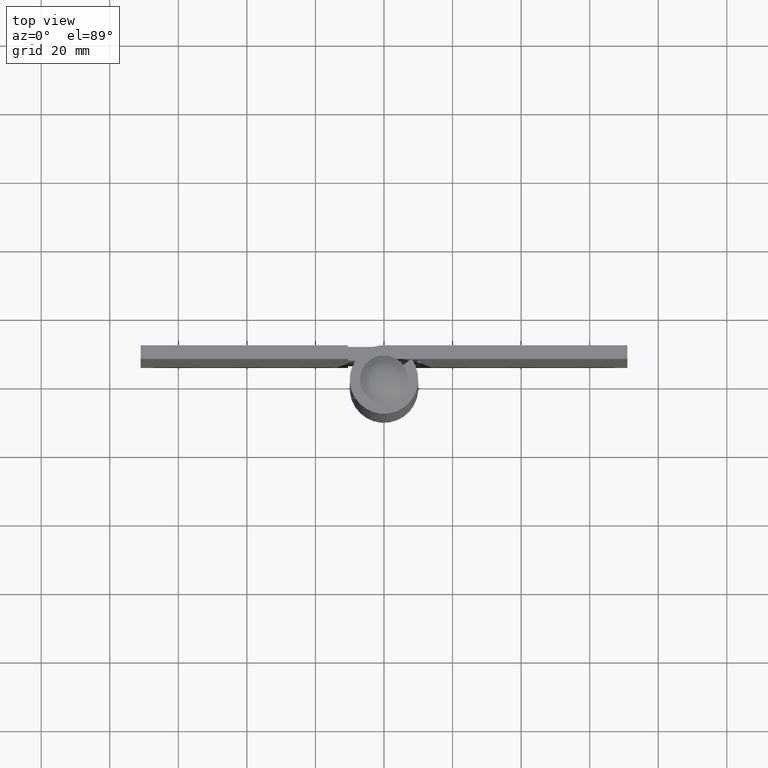
[diagram: clean part render]
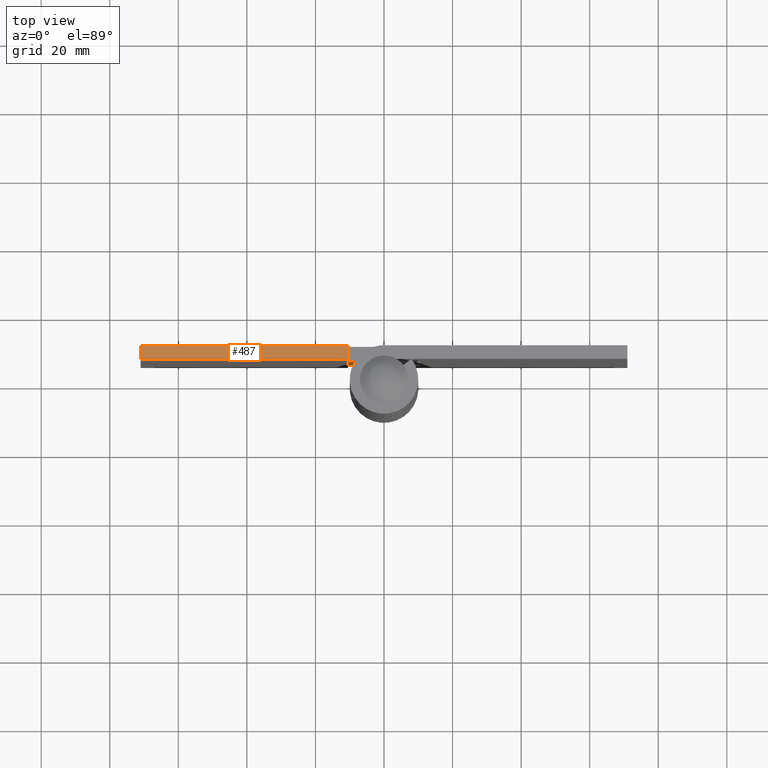
[diagram: same view with one face highlighted and labeled with its STEP entity id]
A machine part, top view. The second image highlights one B-rep face of the part: STEP entity #487.
In plain terms, the highlighted face is a freeform B-spline surface patch.
Its self-contained STEP definition (entity closure, byte-faithful):
#340=CARTESIAN_POINT('',(-10.500000000000000,10.0,151.999985000000010));
#341=VERTEX_POINT('',#340);
#347=CARTESIAN_POINT('',(-10.500000000000000,6.0,151.999985000000010));
#348=VERTEX_POINT('',#347);
#349=CARTESIAN_POINT('',(-10.500000000000000,6.0,151.999985000000010));
#350=CARTESIAN_POINT('',(-10.500000000000000,10.0,151.999985000000010));
#351=QUASI_UNIFORM_CURVE('',1,(#349,#350),.UNSPECIFIED.,.F.,.U.);
#352=EDGE_CURVE('',#348,#341,#351,.T.);
#460=CARTESIAN_POINT('',(-74.021974882739258,5.800200007752776,151.999985000000010));
#461=CARTESIAN_POINT('',(-7.478023494524289,5.800200007752776,151.999985000000010));
#462=CARTESIAN_POINT('',(-74.021974882739258,10.199800099535590,151.999985000000010));
#463=CARTESIAN_POINT('',(-7.478023494524289,10.199800099535590,151.999985000000010));
#464=B_SPLINE_SURFACE_WITH_KNOTS('',1,1,((#460,#462),(#461,#463)),.UNSPECIFIED.,.F.,.F.,.U.,(2,2),(2,2),(0.0,66.543951388214964),(0.0,4.399600091782808),.UNSPECIFIED.);
#465=CARTESIAN_POINT('',(-71.0,6.0,151.999985000000010));
#466=VERTEX_POINT('',#465);
#467=CARTESIAN_POINT('',(-71.0,6.0,151.999985000000010));
#468=CARTESIAN_POINT('',(-10.500000000000000,6.0,151.999985000000010));
#469=QUASI_UNIFORM_CURVE('',1,(#467,#468),.UNSPECIFIED.,.F.,.U.);
#470=EDGE_CURVE('',#466,#348,#469,.T.);
#471=ORIENTED_EDGE('',*,*,#470,.T.);
#472=ORIENTED_EDGE('',*,*,#352,.T.);
#473=CARTESIAN_POINT('',(-71.0,10.0,151.999985000000010));
#474=VERTEX_POINT('',#473);
#475=CARTESIAN_POINT('',(-10.500000000000000,10.0,151.999985000000010));
#476=CARTESIAN_POINT('',(-71.0,10.0,151.999985000000010));
#477=QUASI_UNIFORM_CURVE('',1,(#475,#476),.UNSPECIFIED.,.F.,.U.);
#478=EDGE_CURVE('',#341,#474,#477,.T.);
#479=ORIENTED_EDGE('',*,*,#478,.T.);
#480=CARTESIAN_POINT('',(-71.0,10.0,151.999985000000010));
#481=CARTESIAN_POINT('',(-71.0,6.0,151.999985000000010));
#482=QUASI_UNIFORM_CURVE('',1,(#480,#481),.UNSPECIFIED.,.F.,.U.);
#483=EDGE_CURVE('',#474,#466,#482,.T.);
#484=ORIENTED_EDGE('',*,*,#483,.T.);
#485=EDGE_LOOP('',(#471,#472,#479,#484));
#486=FACE_OUTER_BOUND('',#485,.T.);
#487=ADVANCED_FACE('',(#486),#464,.T.);